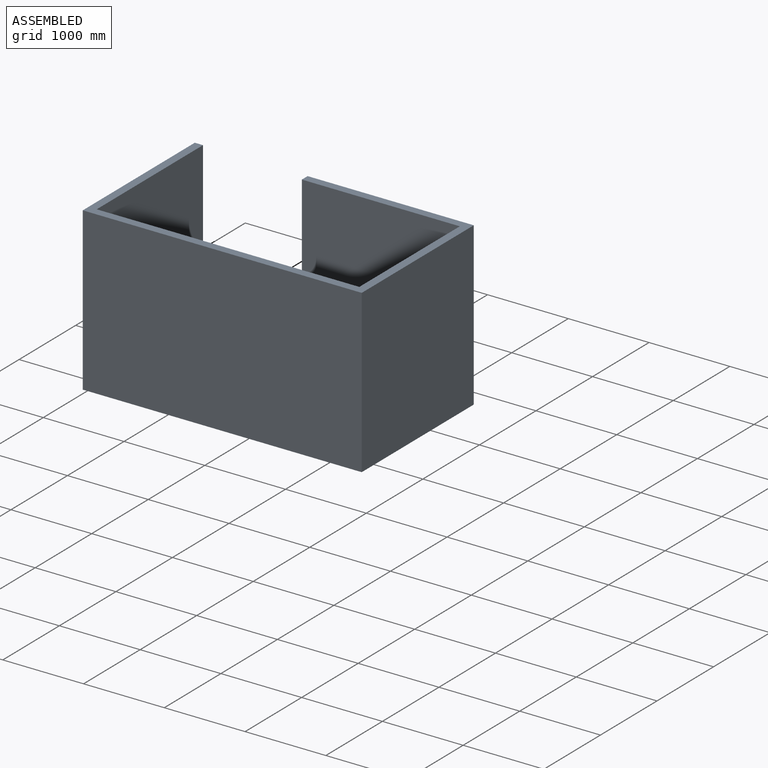
[diagram: assembled view]
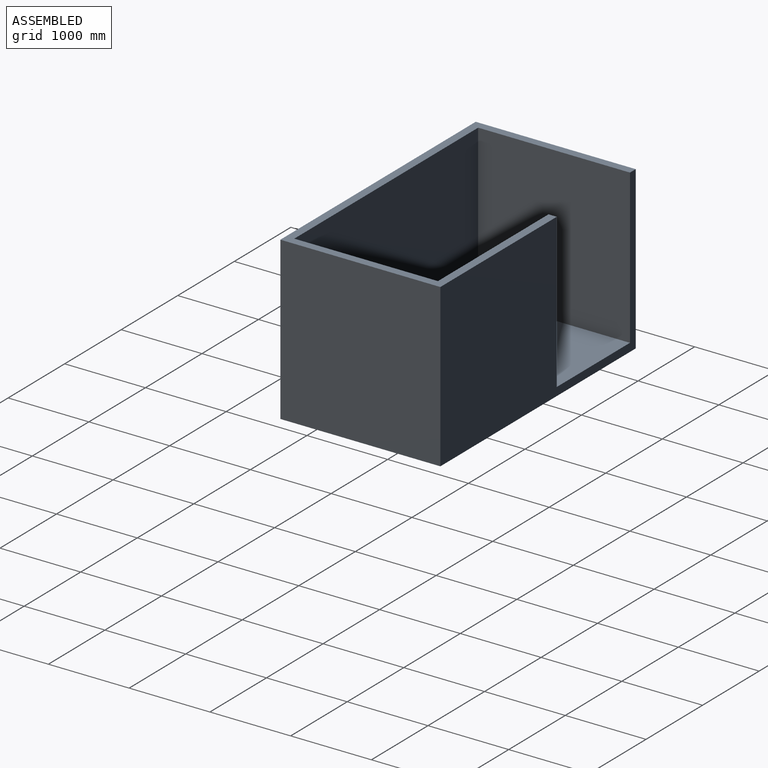
[diagram: assembled view, second angle]
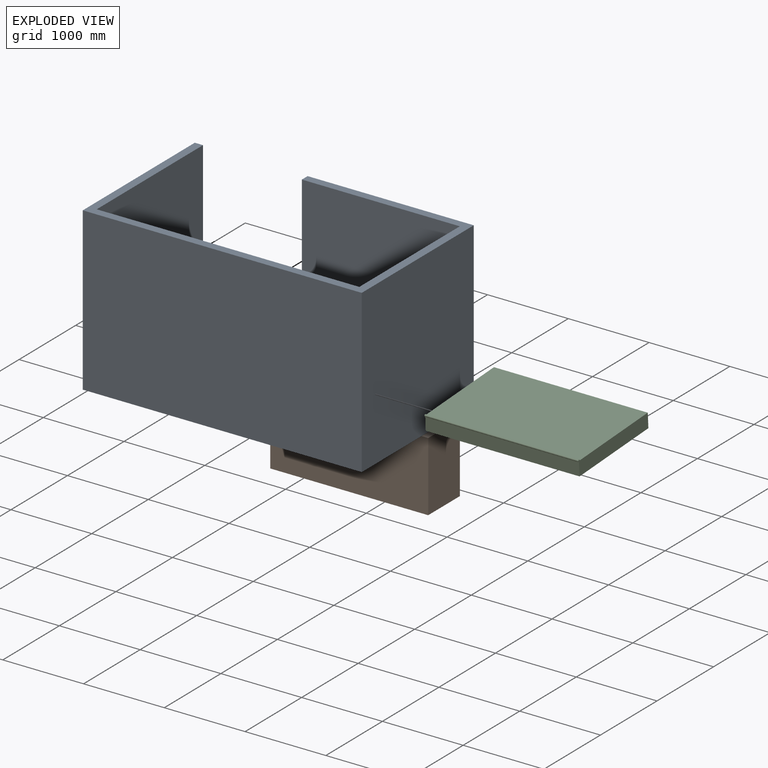
[diagram: exploded view]
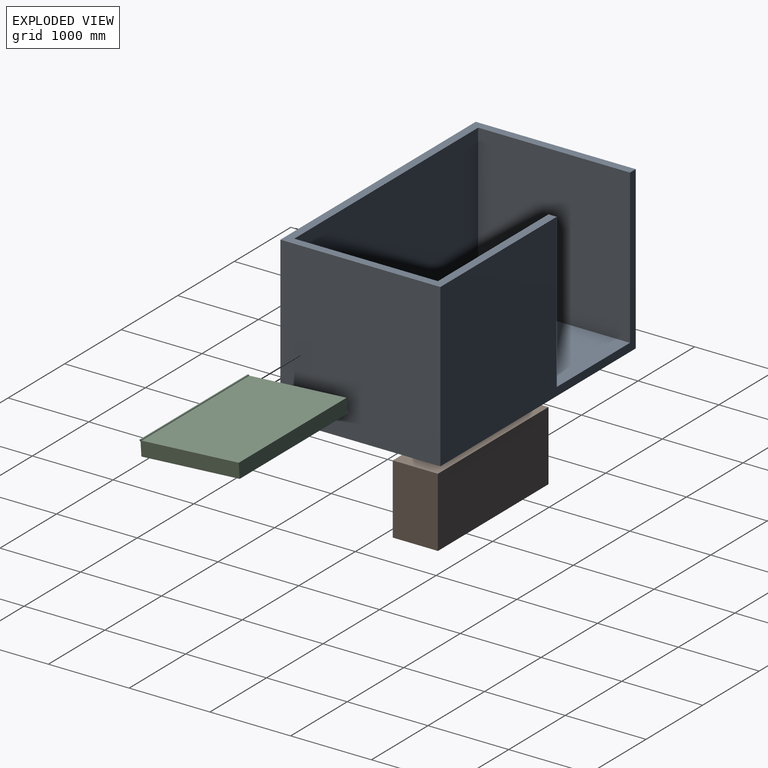
[diagram: exploded view, second angle]
ASSEMBLY  parts=3 mates=2
PART A: 14 faces, bbox 3454.4x1981.2x2006.6 mm
  f0: plane 1905x1778mm, normal (-1,0,0), area 3386836.6mm2, adj f1,f5,f9,f11,f12
  f1: plane 3251.2x1905mm, normal (0,1,0), area 6145149mm2, adj f0,f6,f9,f11,f12,f13
  f2: plane 3454.4x2006.6mm, normal (0,-1,0), area 6931599mm2, adj f3,f8,f9,f10
  f3: plane 2006.6x1981.2mm, normal (1,0,0), area 3975475.9mm2, adj f2,f7,f9,f10
  f4: plane 1905x101.6mm, normal (-1,0,0), area 193548mm2, adj f5,f7,f9,f11
  f5: plane 1955.8x1905mm, normal (0,-1,0), area 3725799mm2, adj f0,f4,f9,f11
  f6: plane 1905x1879.6mm, normal (1,0,0), area 3580638mm2, adj f1,f7,f9,f11
  f7: plane 3454.4x2006.6mm, normal (0,1,0), area 4463862mm2, adj f3,f4,f6,f8,f9,f10,f11
  f8: plane 2006.6x1981.2mm, normal (-1,0,0), area 3975475.9mm2, adj f2,f7,f9,f10
  f9: plane 3454.4x1981.2mm, normal (0,0,1), area 931611mm2, adj f0,f1,f2,f3,f4,f5,f6,f7
  f10: plane 3454.4x1981.2mm, normal (0,0,-1), area 6843857.3mm2, adj f2,f3,f7,f8
  f11: plane 3251.2x1879.6mm, normal (0,0,1), area 5912246.2mm2, adj f0,f1,f4,f5,f6,f7
  f12: cylinder r=12.7mm len=1905mm, axis (1,0,0), area 76006.1mm2, adj f0,f1,f13
  f13: plane 25.4x12.7mm, normal (-1,0,0), area 253.4mm2, adj f1,f12
PART B: 6 faces, bbox 1955.8x558.8x863.6 mm
  f0: plane 1955.8x863.6mm, normal (0,-1,0), area 1689028.9mm2, adj f1,f3,f4,f5
  f1: plane 863.6x558.8mm, normal (1,0,0), area 482579.7mm2, adj f0,f2,f4,f5
  f2: plane 1955.8x863.6mm, normal (0,1,0), area 1689028.9mm2, adj f1,f3,f4,f5
  f3: plane 863.6x558.8mm, normal (-1,0,0), area 482579.7mm2, adj f0,f2,f4,f5
  f4: plane 1955.8x558.8mm, normal (0,0,1), area 1092901mm2, adj f0,f1,f2,f3
  f5: plane 1955.8x558.8mm, normal (0,0,-1), area 1092901mm2, adj f0,f1,f2,f3
PART C: 7 faces, bbox 1905x1231.9x190.5 mm
  f0: plane 1905x177.8mm, normal (0,-1,0), area 338709mm2, adj f1,f3,f4,f5
  f1: plane 1231.9x190.5mm, normal (1,0,0), area 217153.8mm2, adj f0,f2,f4,f5,f6
  f2: plane 1905x165.1mm, normal (0,1,0), area 314515.5mm2, adj f1,f3,f5,f6
  f3: plane 1231.9x190.5mm, normal (-1,0,0), area 217153.8mm2, adj f0,f2,f4,f5,f6
  f4: plane 1905x1206.5mm, normal (0,0,1), area 2298382.5mm2, adj f0,f1,f3,f6
  f5: plane 1905x1219.2mm, normal (0,0,-1), area 2322576mm2, adj f0,f1,f2,f3
  f6: cylinder r=12.7mm len=1905mm, axis (1,0,0), area 114009.2mm2, adj f1,f2,f3,f4
PLACE A t=(0,-128.27,0)mm fixed
PLACE B t=(647.7,481.33,0)mm
PLACE C rot(axis=(0,0.03,-1),180deg) t=(673.1,-397.85,545.99)mm
MATE revolute C.f6 <-> A.f12  axis (-1,0,0) through (673.1,-1017.27,685.8)mm
MATE fastened B.f5 <-> A.f11  axis (0,0,1) through (1625.6,760.73,0)mm
